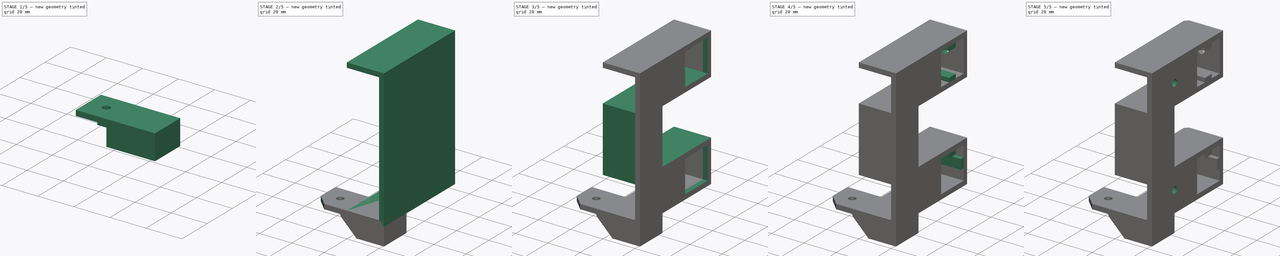
[diagram: build sequence overview — one tinted view per stage of 5, left to right]
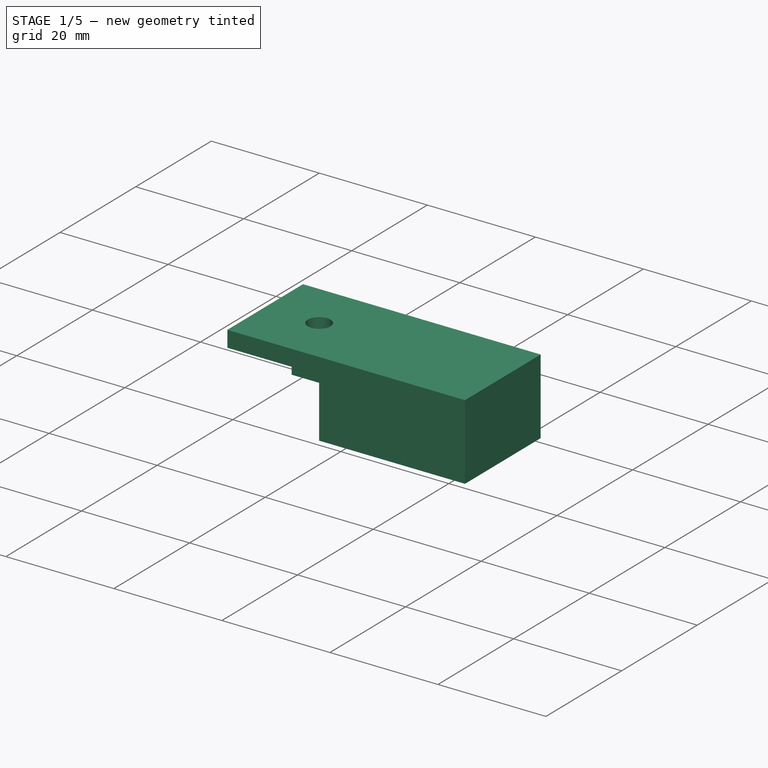
[diagram: stage 1 of 5 — iso view after this stage's code; geometry added in this stage tinted green]
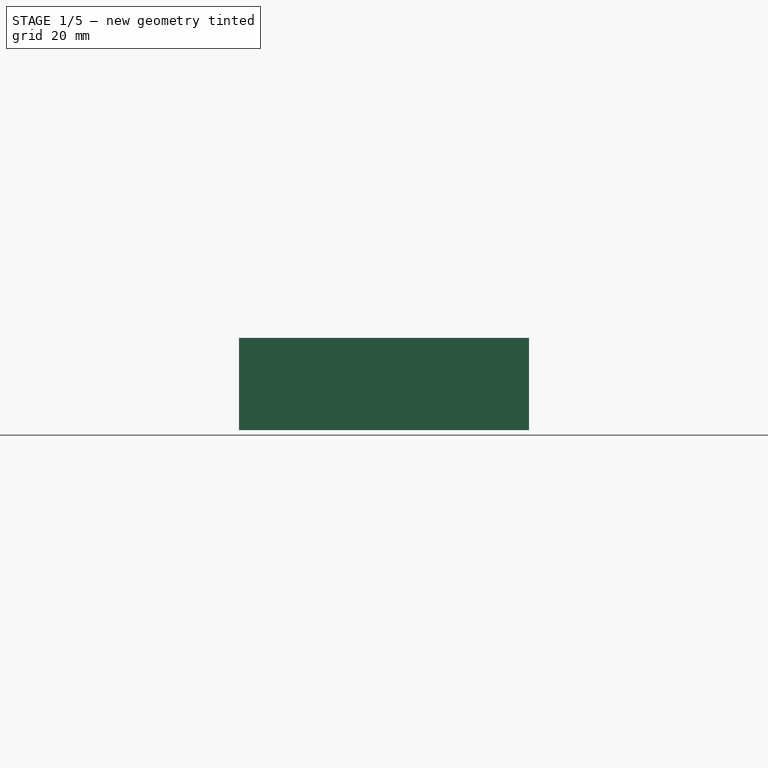
[diagram: stage 1 of 5 — front view after this stage's code; geometry added in this stage tinted green]
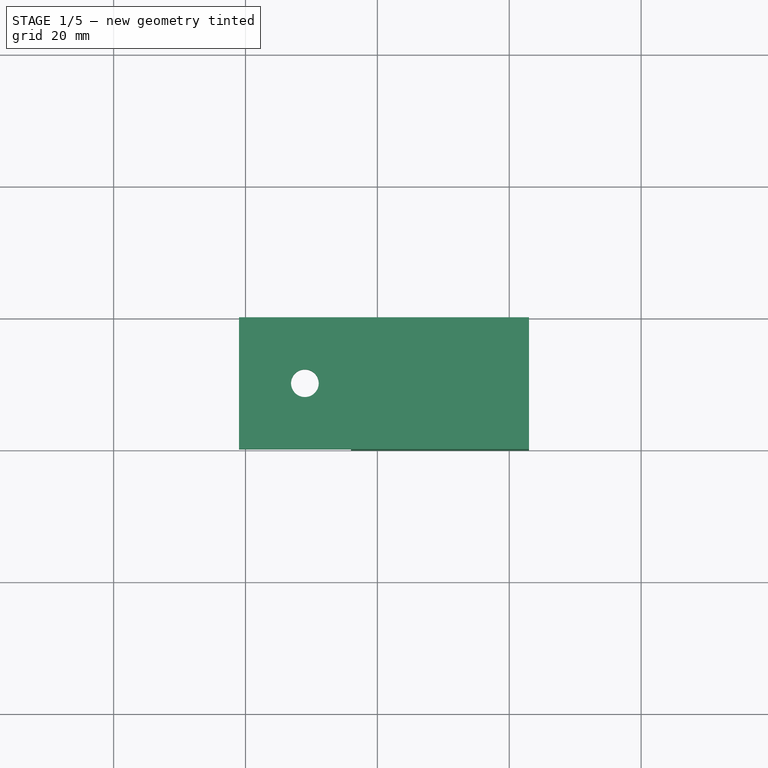
[diagram: stage 1 of 5 — top view after this stage's code; geometry added in this stage tinted green]
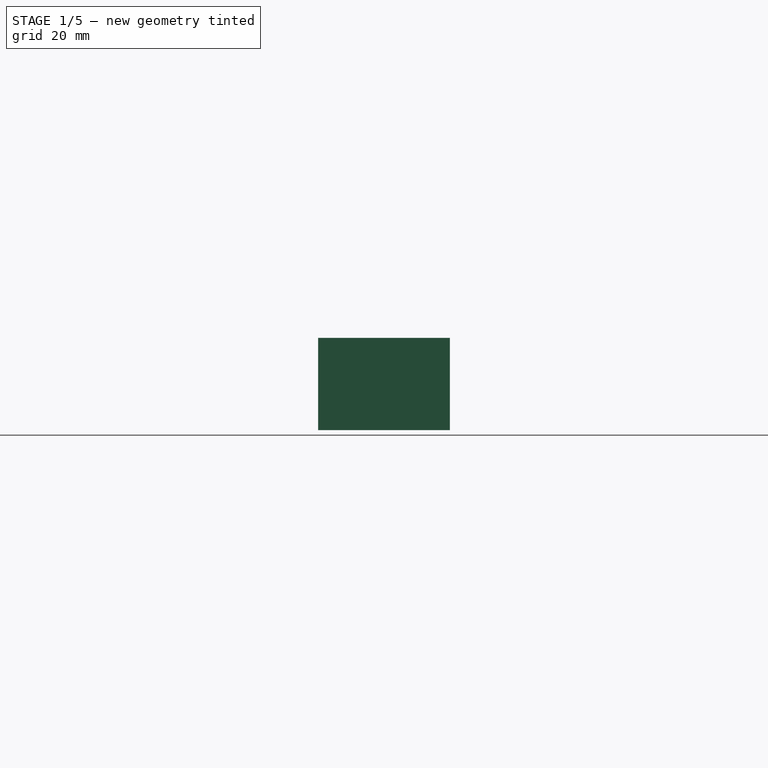
[diagram: stage 1 of 5 — right view after this stage's code; geometry added in this stage tinted green]
FCSTD DOCUMENT  (FreeCAD 0.14R3692 (Git))
Label: foot-front
License: CC-BY 3.0
LicenseURL: http://creativecommons.org/licenses/by/3.0/
objects: Sketcher::SketchObject×12, PartDesign::Pocket×9, Part::Feature×5, PartDesign::Pad×3, Part::Box×2, Part::Chamfer×2, Part::Thickness×1, App::DocumentObjectGroup×1, Part::MultiFuse×1
note: 47 computed .brp shape members not serialized (recipe doc carries the construction recipe); baked Part::Feature solids carry a one-line shape summary decoded from their .brp

FEATURE [Part::Box] Box001  label="foot-cube"
  Height = 14
  Length = 44
  Placement = pos=(-21,-60,-14) rot=(0,0,1;0rad)
  Width = 20
FEATURE [Sketcher::SketchObject] Sketch015  label="foot-cutout-sketch"
  Placement = pos=(-21,-60,-14) rot=(0.57735,-0.57735,-0.57735;2.0944rad)
  Support = -> Box001 [Face1]
  sketch-geometry (4):
    g0: LineSegment StartX=-3 StartY=0 StartZ=0 EndX=-17 EndY=0 EndZ=0
    g1: LineSegment StartX=-17 StartY=0 StartZ=0 EndX=-17 EndY=11 EndZ=0
    g2: LineSegment StartX=-17 StartY=11 StartZ=0 EndX=-3 EndY=11 EndZ=0
    g3: LineSegment StartX=-3 StartY=11 StartZ=0 EndX=-3 EndY=0 EndZ=0
  constraints (12):
    c: Coincident(g0,g1)
    c: Coincident(g1,g2)
    c: Coincident(g2,g3)
    c: Coincident(g3,g0)
    c: Horizontal(g0)
    c: Horizontal(g2)
    c: Vertical(g1)
    c: Vertical(g3)
    c: PointOnObject(g0,g-1)
    c: DistanceX(g-1,g0) = -3
    c: DistanceX(g0) = -14
    c: DistanceY(g3) = -11
FEATURE [PartDesign::Pocket] Pocket008  label="foot-cutout-pocket"
  Length = 29
  Placement = pos=(-21,-60,-14) rot=(0,0,1;0rad)
  Sketch = -> Sketch015
  Type = 0
FEATURE [Part::Feature] Part__Feature  label="extrusion-p20n6b-300-bottom-left"
  Placement = pos=(10,-320,10) rot=(-1,0,0;1.5708rad)
  shape: bbox 20 x 300 x 20 mm, 154 faces (baked)
FEATURE [Part::Feature] Part__Feature001  label="extrusion-p20n6b-300-top-left"
  Placement = pos=(10,-320,70) rot=(-1,0,0;1.5708rad)
  shape: bbox 20 x 300 x 20 mm, 154 faces (baked)
FEATURE [Part::Feature] Part__Feature002  label="extrusion-p20n6b-200-bottom-front"
  Placement = pos=(0,-10,10) rot=(0,1,0;1.5708rad)
  shape: bbox 200 x 20 x 20 mm, 154 faces (baked)
FEATURE [Part::Feature] Part__Feature003  label="extrusion-p20n6b-200-top-front"
  Placement = pos=(0,-10,70) rot=(0,1,0;1.5708rad)
  shape: bbox 200 x 20 x 20 mm, 154 faces (baked)
FEATURE [App::DocumentObjectGroup] Grupo  label="aux"
  Group = -> [Part__Feature,Part__Feature001,Part__Feature002,Part__Feature003]
FEATURE [Sketcher::SketchObject] Sketch017  label="foot-accesible-sketch"
  Placement = pos=(-21,-60,-14) rot=(1,0,0;1.5708rad)
  Support = -> Pocket008 [Face2]
  sketch-geometry (4):
    g0: LineSegment StartX=-1 StartY=11 StartZ=0 EndX=17 EndY=11 EndZ=0
    g1: LineSegment StartX=17 StartY=11 StartZ=0 EndX=17 EndY=-1 EndZ=0
    g2: LineSegment StartX=17 StartY=-1 StartZ=0 EndX=-1 EndY=-1 EndZ=0
    g3: LineSegment StartX=-1 StartY=-1 StartZ=0 EndX=-1 EndY=11 EndZ=0
  constraints (12):
    c: Coincident(g0,g1)
    c: Coincident(g1,g2)
    c: Coincident(g2,g3)
    c: Coincident(g3,g0)
    c: Horizontal(g0)
    c: Horizontal(g2)
    c: Vertical(g1)
    c: Vertical(g3)
    c: DistanceX(g0) = 18
    c: DistanceY(g1) = -12
    c: DistanceX(g-1,g2) = -1
    c: DistanceY(g-1,g2) = -1
FEATURE [PartDesign::Pocket] Pocket010  label="foot-accesible-pocket"
  Length = 3
  Placement = pos=(-21,-60,-14) rot=(0,0,1;0rad)
  Sketch = -> Sketch017
  Type = 0
FEATURE [Sketcher::SketchObject] Sketch016  label="foot-screw-hole-sketch"
  Placement = pos=(-21,-60,0) rot=(0,0,1;0rad)
  Support = -> Pocket010 [Face3]
  sketch-geometry (1):
    g0: Circle CenterX=10 CenterY=10 CenterZ=0 NormalX=0 NormalY=0 NormalZ=1 Radius=2.1
  constraints (3):
    c: DistanceY(g-1,g0) = 10
    c: DistanceX(g-1,g0) = 10
    c: Radius(g0) = 2.1
FEATURE [PartDesign::Pocket] Pocket009  label="foot-screw-hole-pocket"
  Length = 3
  Placement = pos=(-21,-60,-14) rot=(0,0,1;0rad)
  Sketch = -> Sketch016
  Type = 0
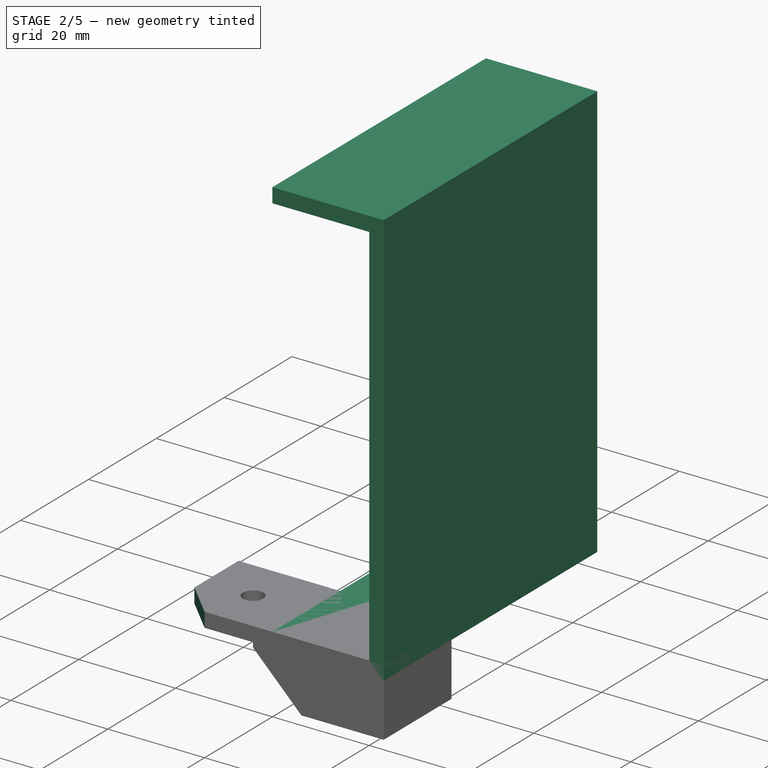
[diagram: stage 2 of 5 — iso view after this stage's code; geometry added in this stage tinted green]
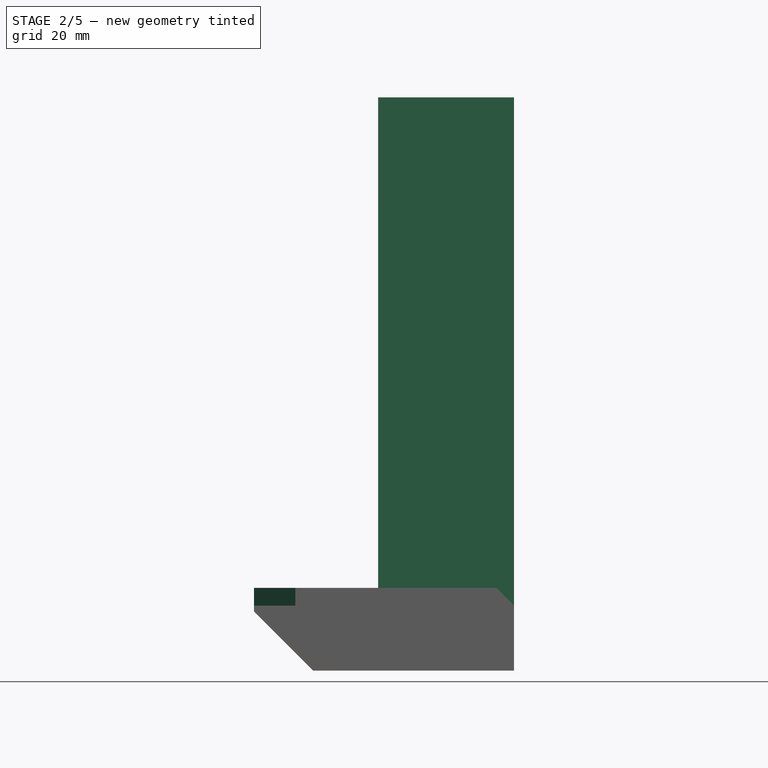
[diagram: stage 2 of 5 — front view after this stage's code; geometry added in this stage tinted green]
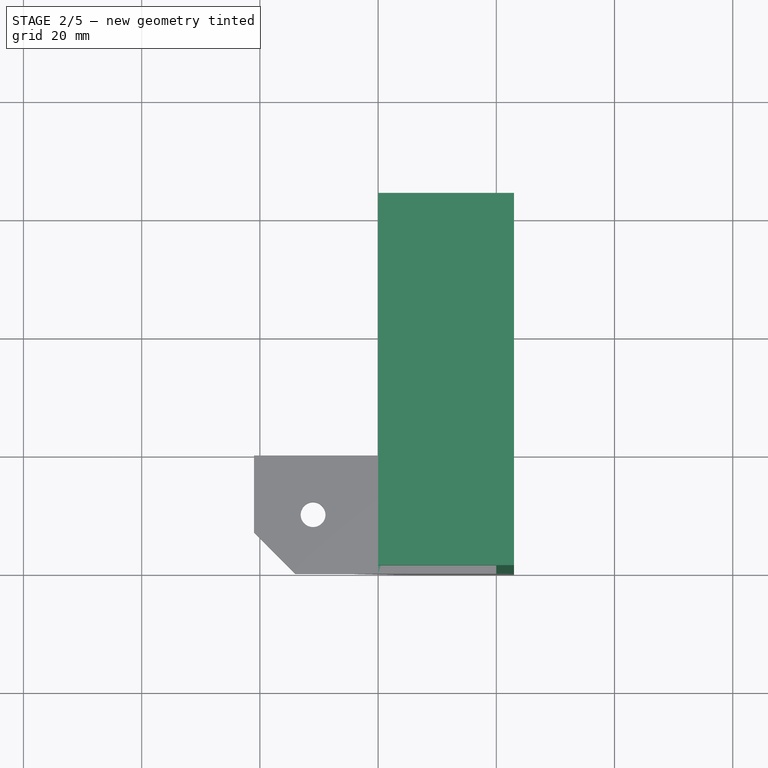
[diagram: stage 2 of 5 — top view after this stage's code; geometry added in this stage tinted green]
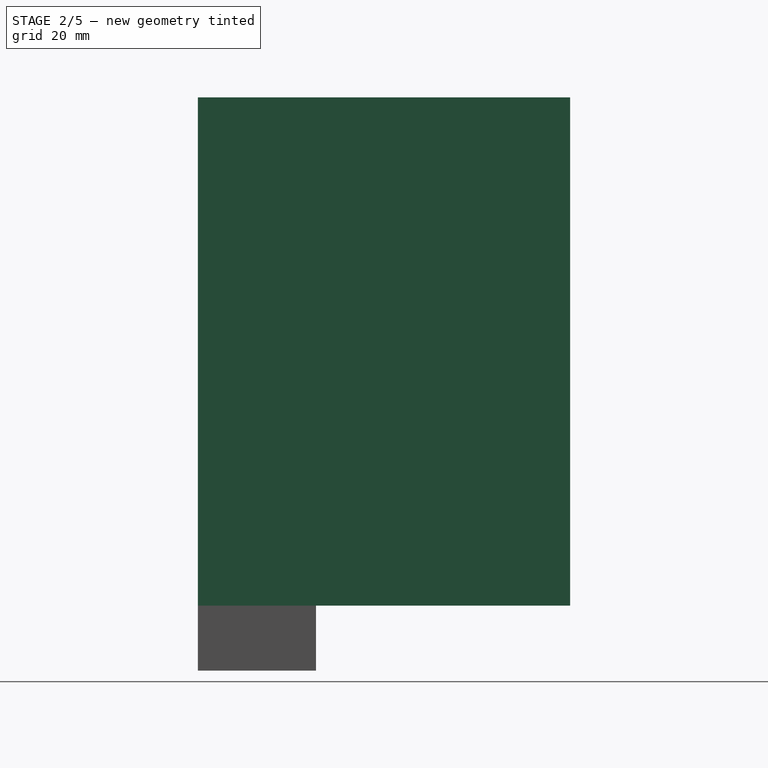
[diagram: stage 2 of 5 — right view after this stage's code; geometry added in this stage tinted green]
FEATURE [Part::Box] Box  label="body-cube"
  Height = 80
  Length = 20
  Placement = pos=(0,-60,0) rot=(0,0,1;0rad)
  Width = 60
FEATURE [Part::Thickness] Thickness  label="body-thickness"
  Faces = -> Box [Face1,Face3]
  Intersection = false
  Join = 2
  Mode = 0
  SelfIntersection = false
  Value = 3
FEATURE [Part::Chamfer] Chamfer003  label="foot-chamfer"
  Base = -> Pocket009
  Edges = 3 edges: [Edge7 r=7,Edge18 r=10,Edge19 r=10]
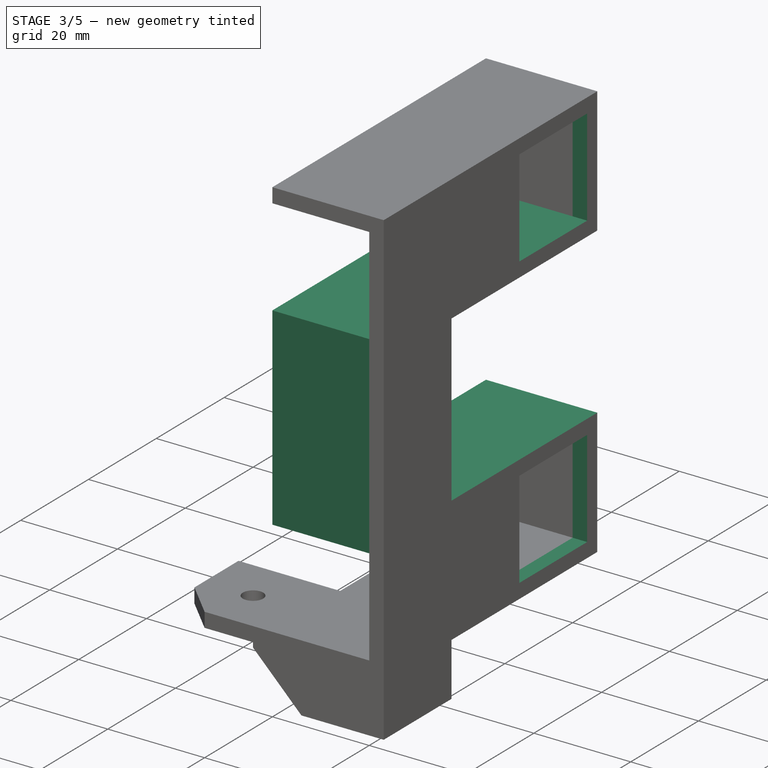
[diagram: stage 3 of 5 — iso view after this stage's code; geometry added in this stage tinted green]
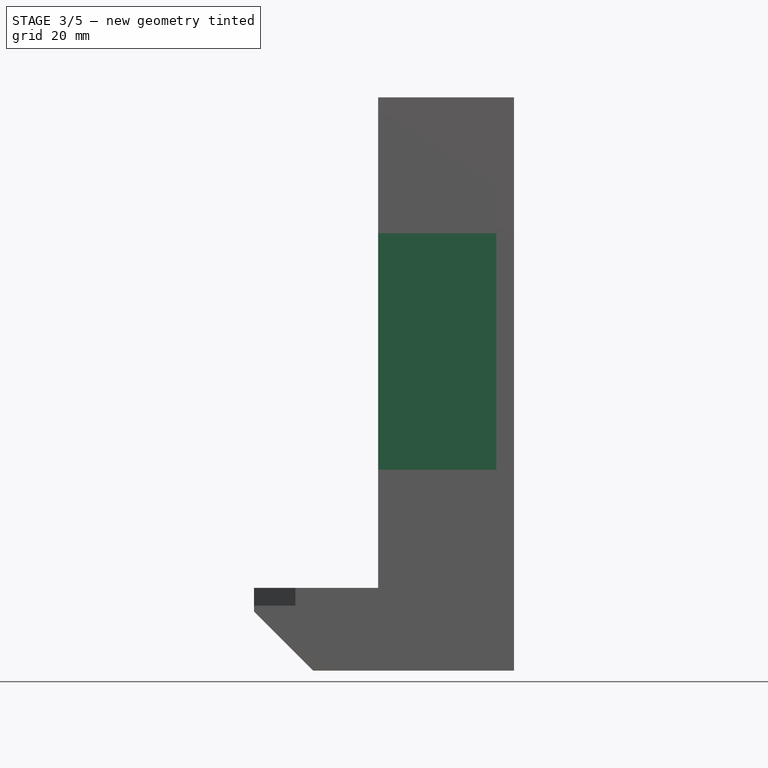
[diagram: stage 3 of 5 — front view after this stage's code; geometry added in this stage tinted green]
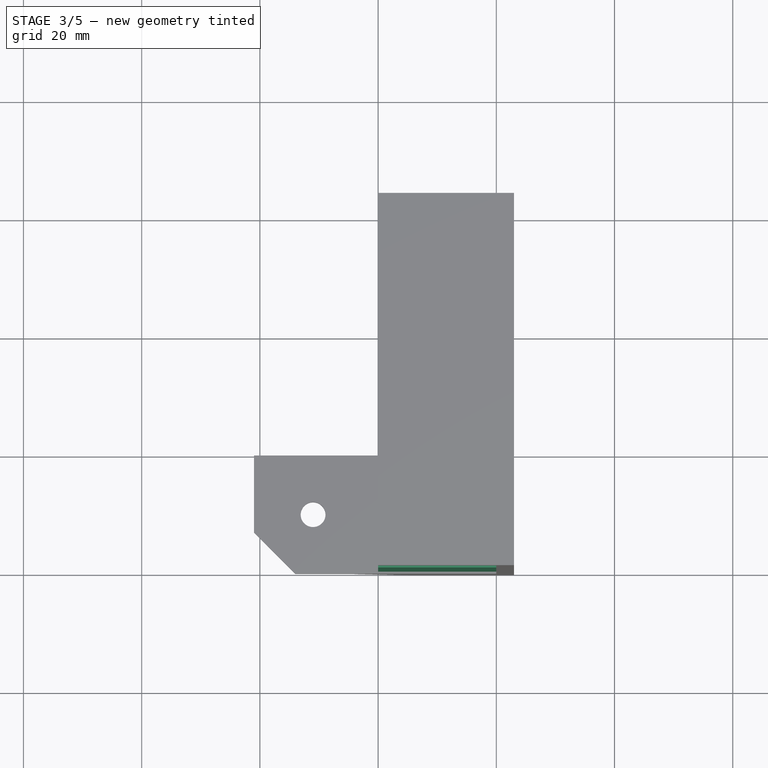
[diagram: stage 3 of 5 — top view after this stage's code; geometry added in this stage tinted green]
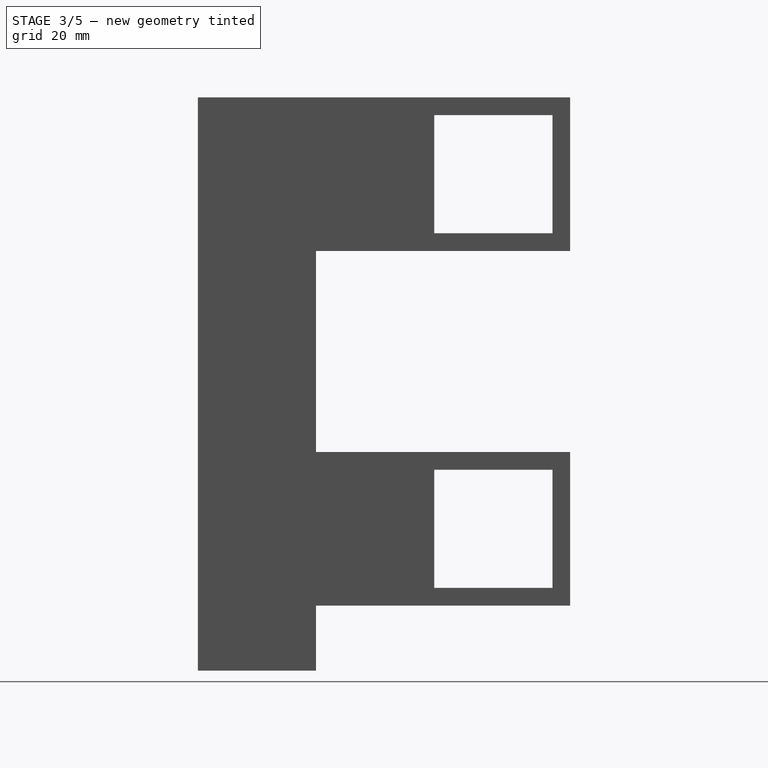
[diagram: stage 3 of 5 — right view after this stage's code; geometry added in this stage tinted green]
FEATURE [Sketcher::SketchObject] Sketch  label="body-sketch"
  Placement = pos=(20,0,0) rot=(0.57735,-0.57735,-0.57735;2.0944rad)
  Support = -> Thickness [Face1]
  sketch-geometry (4):
    g0: LineSegment StartX=0 StartY=60 StartZ=0 EndX=60 EndY=60 EndZ=0
    g1: LineSegment StartX=60 StartY=60 StartZ=0 EndX=60 EndY=20 EndZ=0
    g2: LineSegment StartX=0 StartY=20 StartZ=0 EndX=0 EndY=60 EndZ=0
    g3: LineSegment StartX=60 StartY=20 StartZ=0 EndX=0 EndY=20 EndZ=0
  constraints (12):
    c: Coincident(g3,g2)
    c: Coincident(g2,g0)
    c: Horizontal(g0)
    c: Vertical(g1)
    c: Vertical(g2)
    c: DistanceY(g-1,g3) = 20
    c: Horizontal(g3)
    c: Coincident(g1,g3)
    c: Coincident(g0,g1)
    c: PointOnObject(g2,g-2)
    c: DistanceY(g2) = 40
    c: DistanceX(g3) = -60
FEATURE [PartDesign::Pad] Pad  label="body-pad"
  Length = 20
  Length2 = 100
  Sketch = -> Sketch
  Type = 0
  UpToFace = -> Thickness [Face5]
FEATURE [Sketcher::SketchObject] Sketch001  label="body-cutout-sketch"
  Placement = pos=(0,0,0) rot=(0.57735,-0.57735,-0.57735;2.0944rad)
  Support = -> Pad [Face11]
  sketch-geometry (4):
    g0: LineSegment StartX=-3 StartY=57 StartZ=0 EndX=40 EndY=57 EndZ=0
    g1: LineSegment StartX=40 StartY=57 StartZ=0 EndX=40 EndY=23 EndZ=0
    g2: LineSegment StartX=40 StartY=23 StartZ=0 EndX=-3 EndY=23 EndZ=0
    g3: LineSegment StartX=-3 StartY=23 StartZ=0 EndX=-3 EndY=57 EndZ=0
  constraints (12):
    c: Coincident(g0,g1)
    c: Coincident(g1,g2)
    c: Coincident(g2,g3)
    c: Coincident(g3,g0)
    c: Horizontal(g0)
    c: Horizontal(g2)
    c: Vertical(g1)
    c: Vertical(g3)
    c: DistanceY(g-1,g1) = 23
    c: DistanceY(g1) = -34
    c: DistanceX(g2) = -43
    c: DistanceX(g-1,g2) = -3
FEATURE [PartDesign::Pocket] Pocket  label="body-cutout-pocket"
  Length = 5
  Sketch = -> Sketch001
  Type = 1
FEATURE [Sketcher::SketchObject] Sketch002  label="body-recess-sketch"
  Placement = pos=(0,0,0) rot=(0.57735,-0.57735,-0.57735;2.0944rad)
  Support = -> Pocket [Face2]
  sketch-geometry (4):
    g0: LineSegment StartX=43 StartY=57 StartZ=0 EndX=57 EndY=57 EndZ=0
    g1: LineSegment StartX=57 StartY=57 StartZ=0 EndX=57 EndY=23 EndZ=0
    g2: LineSegment StartX=57 StartY=23 StartZ=0 EndX=43 EndY=23 EndZ=0
    g3: LineSegment StartX=43 StartY=23 StartZ=0 EndX=43 EndY=57 EndZ=0
  constraints (12):
    c: Coincident(g0,g1)
    c: Coincident(g1,g2)
    c: Coincident(g2,g3)
    c: Coincident(g3,g0)
    c: Horizontal(g0)
    c: Horizontal(g2)
    c: Vertical(g1)
    c: Vertical(g3)
    c: DistanceY(g-1,g1) = 23
    c: DistanceX(g2) = -14
    c: DistanceY(g1) = -34
    c: DistanceX(g-1,g2) = 43
FEATURE [PartDesign::Pocket] Pocket001  label="body-recess-pocket"
  Length = 0
  Sketch = -> Sketch002
  Type = 3
  UpToFace = -> Pocket [Face4]
FEATURE [Sketcher::SketchObject] Sketch003  label="slot-front-hole-sketch"
  Placement = pos=(23,0,0) rot=(0.57735,0.57735,0.57735;2.0944rad)
  Support = -> Pocket001 [Face11]
  sketch-geometry (8):
    g0: LineSegment StartX=-20 StartY=80 StartZ=0 EndX=0 EndY=80 EndZ=0
    g1: LineSegment StartX=0 StartY=80 StartZ=0 EndX=0 EndY=60 EndZ=0
    g2: LineSegment StartX=0 StartY=60 StartZ=0 EndX=-20 EndY=60 EndZ=0
    g3: LineSegment StartX=-20 StartY=20 StartZ=0 EndX=0 EndY=20 EndZ=0
    g4: LineSegment StartX=0 StartY=20 StartZ=0 EndX=0 EndY=0 EndZ=0
    g5: LineSegment StartX=0 StartY=0 StartZ=0 EndX=-20 EndY=0 EndZ=0
    g6: LineSegment StartX=-20 StartY=80 StartZ=0 EndX=-20 EndY=60 EndZ=0
    g7: LineSegment StartX=-20 StartY=20 StartZ=0 EndX=-20 EndY=0 EndZ=0
  constraints (23):
    c: Coincident(g0,g1)
    c: Coincident(g1,g2)
    c: Horizontal(g0)
    c: Horizontal(g2)
    c: Vertical(g1)
    c: Coincident(g3,g4)
    c: Coincident(g4,g5)
    c: Horizontal(g3)
    c: Horizontal(g5)
    c: Vertical(g4)
    c: Coincident(g0,g6)
    c: Coincident(g2,g6)
    c: Vertical(g6)
    c: Coincident(g5,g7)
    c: Coincident(g3,g7)
    c: DistanceY(g4) = -20
    c: DistanceX(g5) = -20
    c: DistanceX(g2) = -20
    c: DistanceY(g1) = -20
    c: DistanceY(g-1,g1) = 60
    c: Vertical(g7)
    c: Coincident(g4,g-1)
    c: PointOnObject(g1,g-2)
FEATURE [PartDesign::Pocket] Pocket002  label="slot-front-hole-pocket"
  Length = 3
  Sketch = -> Sketch003
  Type = 0
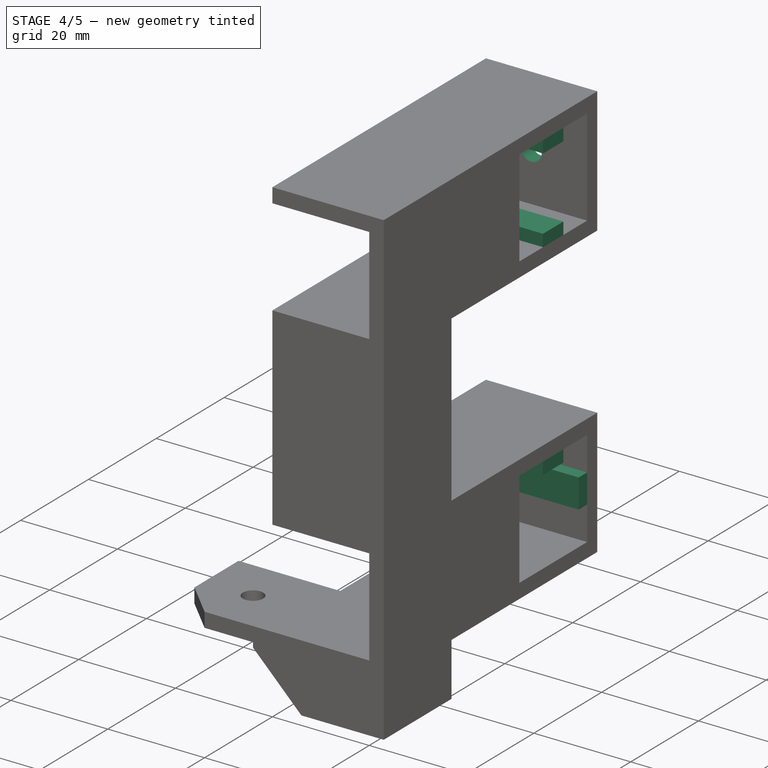
[diagram: stage 4 of 5 — iso view after this stage's code; geometry added in this stage tinted green]
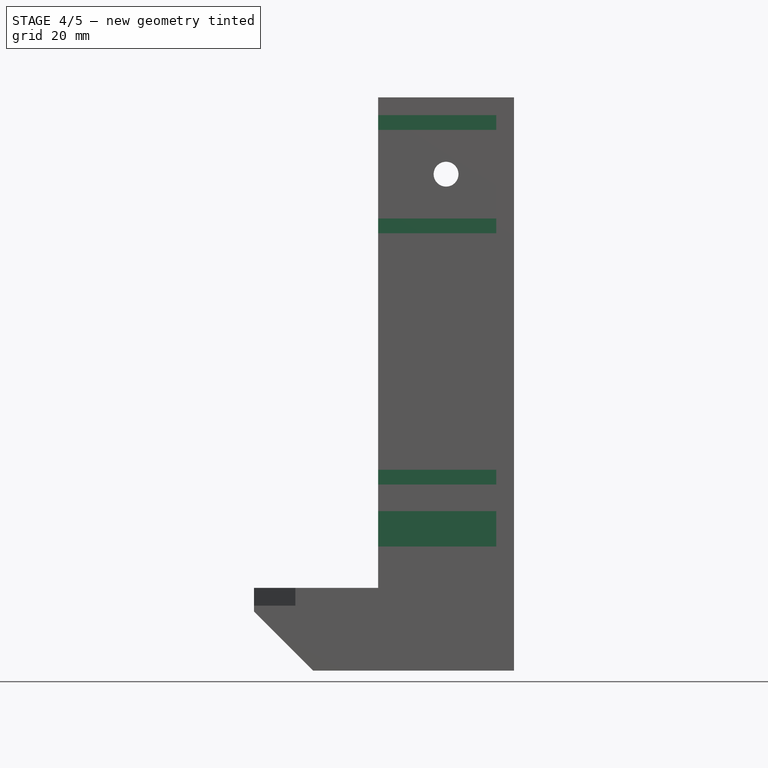
[diagram: stage 4 of 5 — front view after this stage's code; geometry added in this stage tinted green]
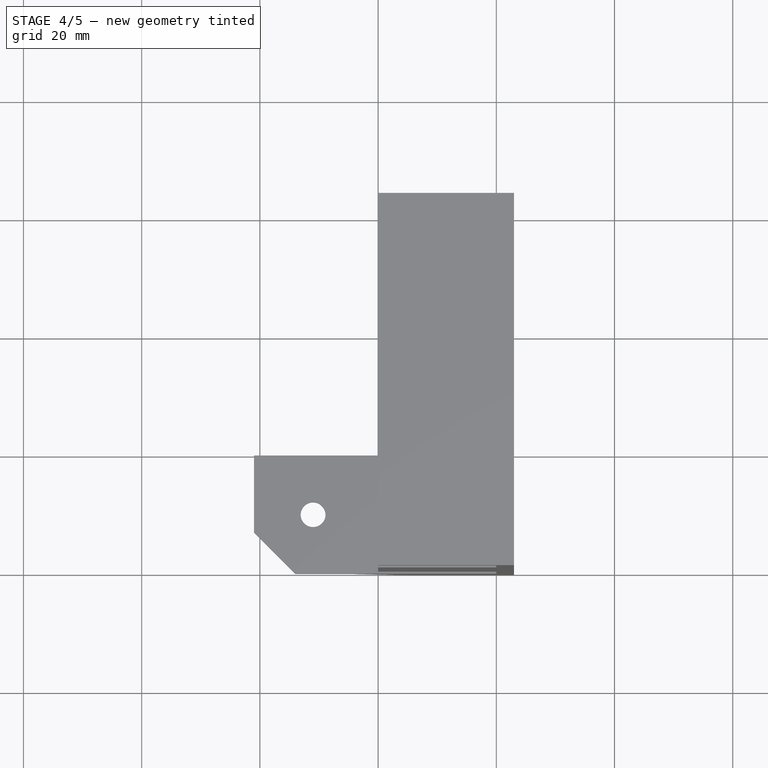
[diagram: stage 4 of 5 — top view after this stage's code; geometry added in this stage tinted green]
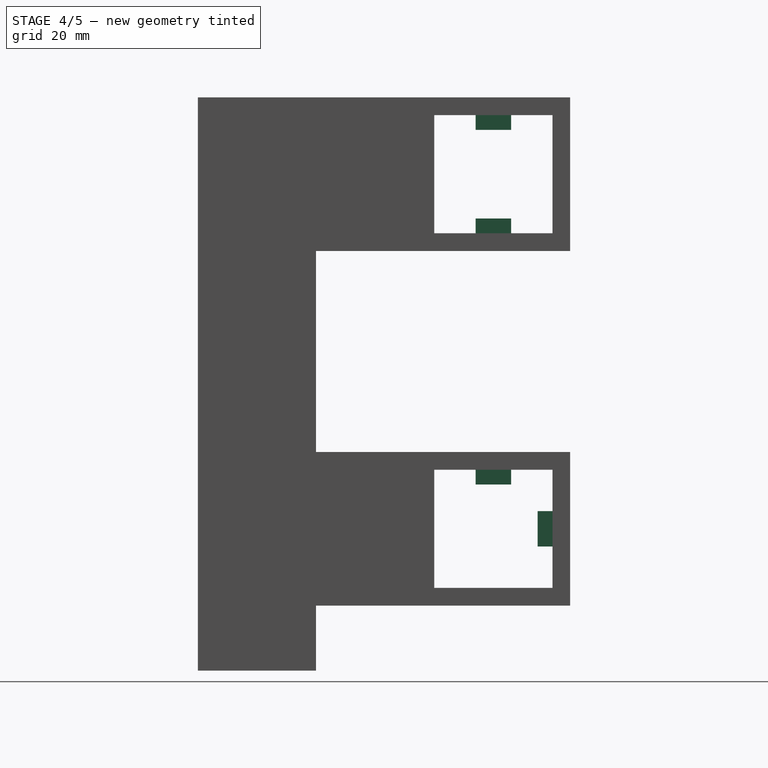
[diagram: stage 4 of 5 — right view after this stage's code; geometry added in this stage tinted green]
FEATURE [Sketcher::SketchObject] Sketch012  label="slot-front-guide-sketch"
  Placement = pos=(23,0,0) rot=(0.57735,0.57735,0.57735;2.0944rad)
  Support = -> Pocket002 [Face9]
  sketch-geometry (16):
    g0: LineSegment StartX=-13 StartY=20 StartZ=0 EndX=-7 EndY=20 EndZ=0
    g1: LineSegment StartX=-7 StartY=20 StartZ=0 EndX=-7 EndY=17.5 EndZ=0
    g2: LineSegment StartX=-7 StartY=17.5 StartZ=0 EndX=-13 EndY=17.5 EndZ=0
    g3: LineSegment StartX=-13 StartY=17.5 StartZ=0 EndX=-13 EndY=20 EndZ=0
    g4: LineSegment StartX=-2.5 StartY=13 StartZ=0 EndX=0 EndY=13 EndZ=0
    g5: LineSegment StartX=0 StartY=13 StartZ=0 EndX=0 EndY=7 EndZ=0
    g6: LineSegment StartX=0 StartY=7 StartZ=0 EndX=-2.5 EndY=7 EndZ=0
    g7: LineSegment StartX=-2.5 StartY=7 StartZ=0 EndX=-2.5 EndY=13 EndZ=0
    g8: LineSegment StartX=-13 StartY=80 StartZ=0 EndX=-7 EndY=80 EndZ=0
    g9: LineSegment StartX=-7 StartY=80 StartZ=0 EndX=-7 EndY=77.5 EndZ=0
    g10: LineSegment StartX=-7 StartY=77.5 StartZ=0 EndX=-13 EndY=77.5 EndZ=0
    g11: LineSegment StartX=-13 StartY=77.5 StartZ=0 EndX=-13 EndY=80 EndZ=0
    g12: LineSegment StartX=-13 StartY=62.5 StartZ=0 EndX=-7 EndY=62.5 EndZ=0
    g13: LineSegment StartX=-7 StartY=62.5 StartZ=0 EndX=-7 EndY=60 EndZ=0
    g14: LineSegment StartX=-7 StartY=60 StartZ=0 EndX=-13 EndY=60 EndZ=0
    g15: LineSegment StartX=-13 StartY=60 StartZ=0 EndX=-13 EndY=62.5 EndZ=0
  constraints (48):
    c: Coincident(g8,g11)
    c: Coincident(g8,g9)
    c: Coincident(g9,g10)
    c: Coincident(g10,g11)
    c: Vertical(g11)
    c: Vertical(g9)
    c: Horizontal(g10)
    c: Horizontal(g8)
    c: Coincident(g12,g15)
    c: Coincident(g12,g13)
    c: Coincident(g14,g15)
    c: Coincident(g13,g14)
    c: Coincident(g0,g3)
    c: Coincident(g0,g1)
    c: Coincident(g2,g3)
    c: Coincident(g1,g2)
    c: Coincident(g4,g7)
    c: Coincident(g6,g7)
    c: Coincident(g4,g5)
    c: Coincident(g5,g6)
    c: Vertical(g7)
    c: Vertical(g5)
    c: Vertical(g3)
    c: Vertical(g1)
    c: Vertical(g15)
    c: Vertical(g13)
    c: Horizontal(g14)
    c: Horizontal(g12)
    c: Horizontal(g0)
    c: Horizontal(g2)
    c: Horizontal(g4)
    c: Horizontal(g6)
    c: DistanceX(g10) = -6
    c: DistanceX(g12) = 6
    c: DistanceX(g2) = -6
    c: DistanceY(g7) = 6
    c: DistanceY(g3) = 2.5
    c: DistanceX(g6) = -2.5
    c: DistanceY(g15) = 2.5
    c: DistanceY(g11) = 2.5
    c: DistanceY(g-1,g5) = 7
    c: DistanceY(g-1,g0) = 20
    c: PointOnObject(g5,g-2)
    c: DistanceX(g-1,g0) = -7
    c: DistanceY(g-1,g13) = 60
    c: DistanceX(g-1,g13) = -7
    c: DistanceY(g8,g13) = -20
    c: DistanceX(g-1,g8) = -7
FEATURE [PartDesign::Pad] Pad003  label="slot-front-guide-pad"
  Length = 23
  Length2 = 100
  Reversed = true
  Sketch = -> Sketch012
  Type = 0
FEATURE [Sketcher::SketchObject] Sketch010  label="slot-front-bottom-screw-hole-sketch"
  Placement = pos=(0,0,-3) rot=(1,0,0;3.14159rad)
  Support = -> Pad003 [Face3]
  sketch-geometry (1):
    g0: Circle CenterX=11.5 CenterY=10 CenterZ=0 NormalX=0 NormalY=0 NormalZ=1 Radius=2.1
  constraints (3):
    c: DistanceX(g-1,g0) = 11.5
    c: DistanceY(g-1,g0) = 10
    c: Radius(g0) = 2.1
FEATURE [PartDesign::Pocket] Pocket004  label="slot-front-bottom-screw-hole-pocket"
  Length = 3
  Sketch = -> Sketch010
  Type = 0
FEATURE [Sketcher::SketchObject] Sketch009  label="slot-front-top-screw-hole-sketch"
  Placement = pos=(0,3,0) rot=(0,0.707107,0.707107;3.14159rad)
  Support = -> Pocket004 [Face15]
  sketch-geometry (1):
    g0: Circle CenterX=-11.5 CenterY=70 CenterZ=0 NormalX=0 NormalY=0 NormalZ=1 Radius=2.1
  constraints (3):
    c: DistanceY(g-1,g0) = 70
    c: DistanceX(g-1,g0) = -11.5
    c: Radius(g0) = 2.1
FEATURE [PartDesign::Pocket] Pocket005  label="slot-front-top-screw-hole-pocket"
  Length = 3
  Sketch = -> Sketch009
  Type = 0
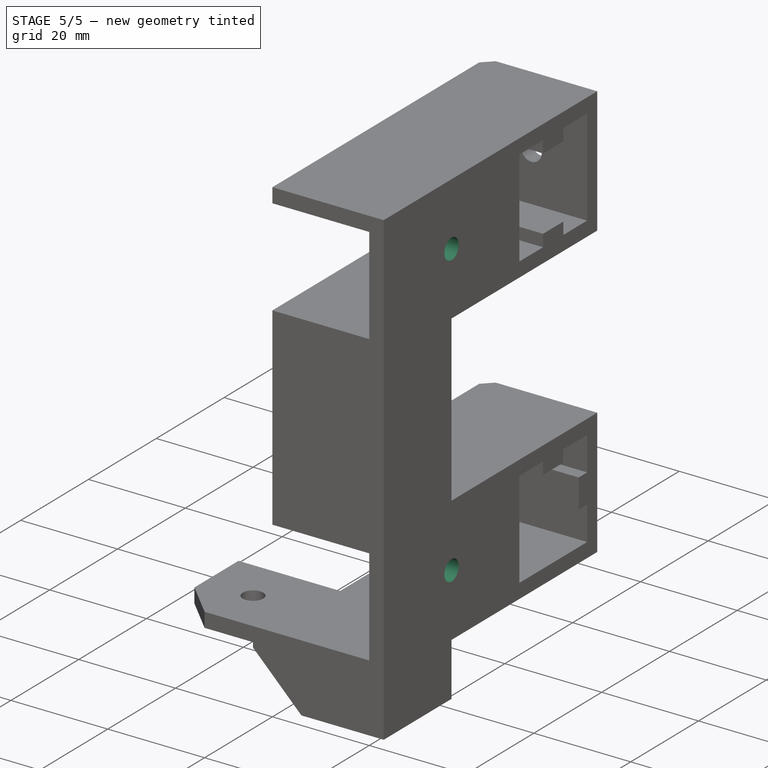
[diagram: stage 5 of 5 — iso view after this stage's code; geometry added in this stage tinted green]
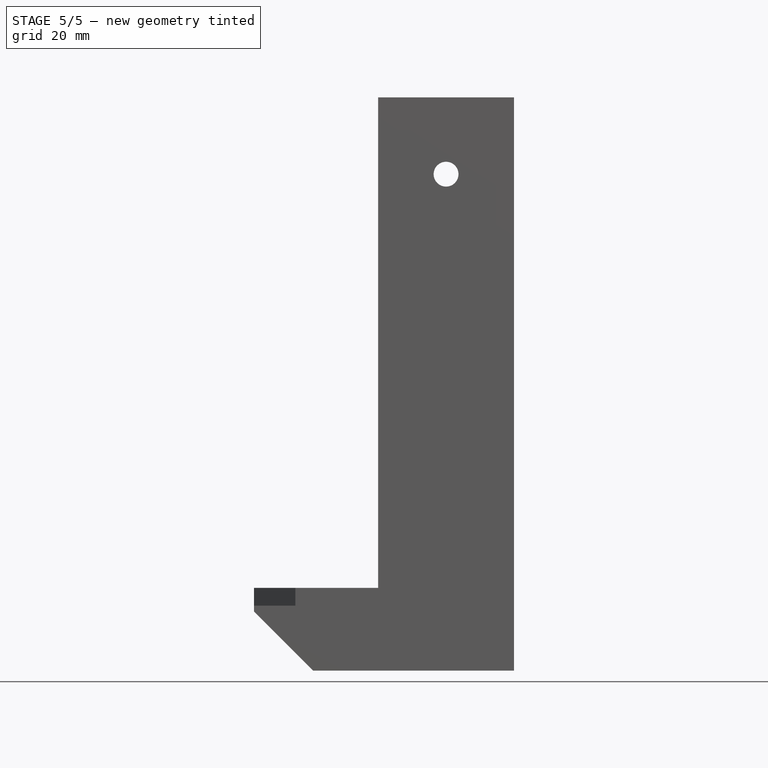
[diagram: stage 5 of 5 — front view after this stage's code; geometry added in this stage tinted green]
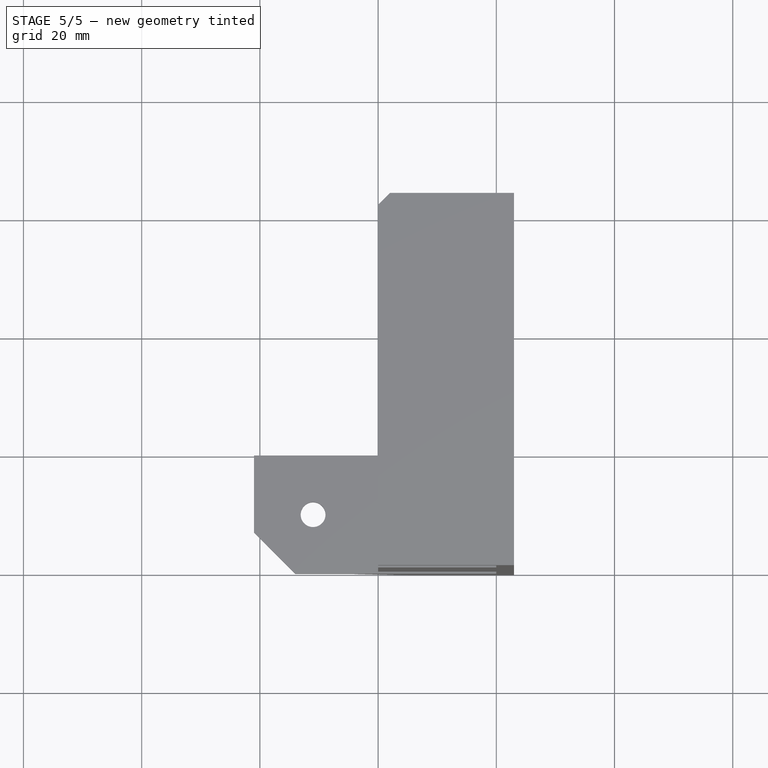
[diagram: stage 5 of 5 — top view after this stage's code; geometry added in this stage tinted green]
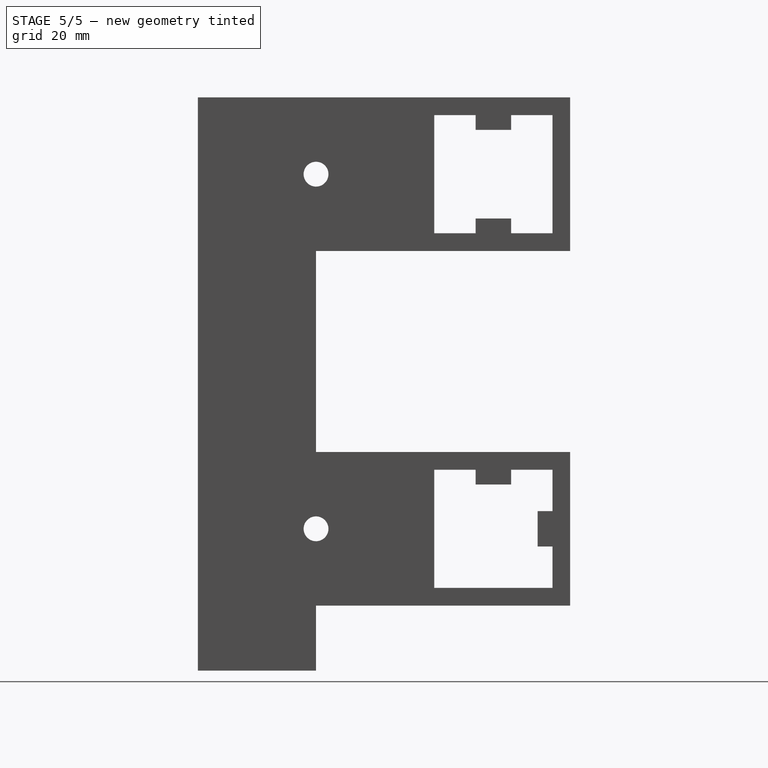
[diagram: stage 5 of 5 — right view after this stage's code; geometry added in this stage tinted green]
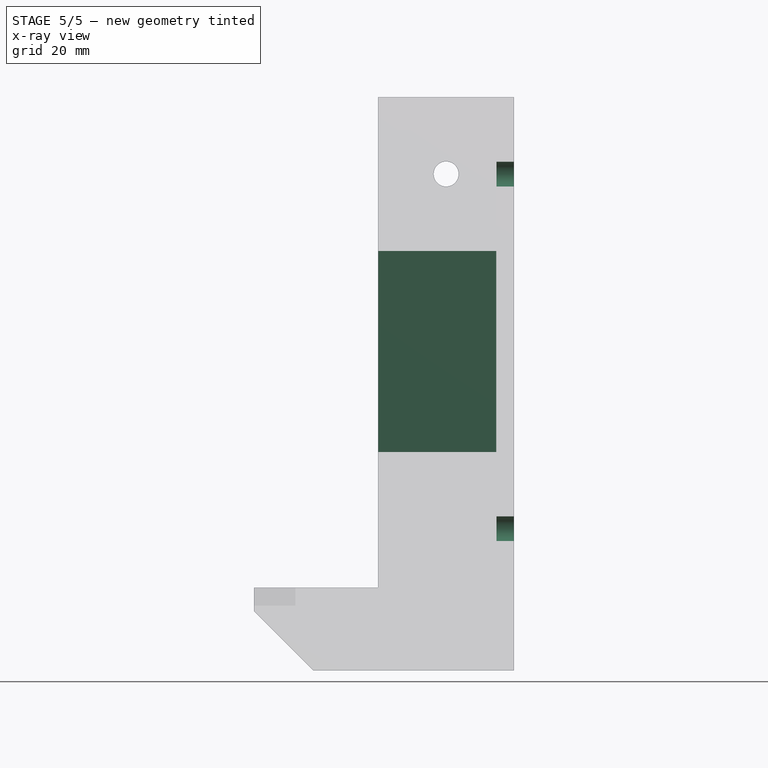
[diagram: stage 5 of 5 — x-ray composite at the front view; earlier geometry ghosted, this stage's added geometry solid]
FEATURE [Sketcher::SketchObject] Sketch013  label="slot-left-screw-holes-sketch"
  Placement = pos=(23,0,0) rot=(0.57735,0.57735,0.57735;2.0944rad)
  Support = -> Pocket005 [Face4]
  sketch-geometry (2):
    g0: Circle CenterX=-40 CenterY=70 CenterZ=0 NormalX=0 NormalY=0 NormalZ=1 Radius=2.1
    g1: Circle CenterX=-40 CenterY=10 CenterZ=0 NormalX=0 NormalY=0 NormalZ=1 Radius=2.1
  constraints (6):
    c: DistanceY(g-1,g1) = 10
    c: DistanceX(g-1,g1) = -40
    c: DistanceY(g-1,g0) = 70
    c: DistanceX(g-1,g0) = -40
    c: Radius(g1) = 2.1
    c: Equal(g1,g0)
FEATURE [PartDesign::Pocket] Pocket007  label="slot-left-screw-holes-pocket"
  Length = 3
  Sketch = -> Sketch013
  Type = 0
FEATURE [Sketcher::SketchObject] Sketch014  label="body-recess-reinforced-sketch"
  Placement = pos=(0,0,57) rot=(1,0,0;3.14159rad)
  Support = -> Pocket007 [Face48]
  sketch-geometry (6):
    g0: LineSegment StartX=0 StartY=57 StartZ=0 EndX=20 EndY=57 EndZ=0
    g1: LineSegment StartX=20 StartY=57 StartZ=0 EndX=20 EndY=56 EndZ=0
    g2: LineSegment StartX=20 StartY=56 StartZ=0 EndX=0 EndY=57 EndZ=0
    g3: LineSegment StartX=0 StartY=43 StartZ=0 EndX=20 EndY=43 EndZ=0
    g4: LineSegment StartX=20 StartY=43 StartZ=0 EndX=20 EndY=44 EndZ=0
    g5: LineSegment StartX=20 StartY=44 StartZ=0 EndX=0 EndY=43 EndZ=0
  constraints (18):
    c: Coincident(g0,g1)
    c: Coincident(g1,g2)
    c: Coincident(g2,g0)
    c: Coincident(g3,g4)
    c: Coincident(g4,g5)
    c: Coincident(g5,g3)
    c: Vertical(g1)
    c: Vertical(g4)
    c: DistanceY(g4) = 1
    c: DistanceY(g1) = -1
    c: PointOnObject(g0,g-2)
    c: PointOnObject(g3,g-2)
    c: Horizontal(g0)
    c: Horizontal(g3)
    c: DistanceX(g3) = 20
    c: DistanceX(g0) = 20
    c: DistanceY(g-1,g3) = 43
    c: DistanceY(g0,g3) = -14
FEATURE [PartDesign::Pad] Pad004  label="body-recess-reinforced-pad"
  Length = 23
  Length2 = 100
  Sketch = -> Sketch014
  Type = 2
FEATURE [Part::Chamfer] Chamfer001  label="slot-front-chamfer"
  Base = -> Pad004
  Edges = 2 edges r=2: [Edge1,Edge84]
FEATURE [Part::MultiFuse] Fusion  label="body-foot-fusion"
  Shapes = -> [Chamfer003,Chamfer001]
FEATURE [Part::Feature] Fusion002  label="foot-front-left"
  shape: bbox 44 x 63 x 97 mm, 59 faces (baked)
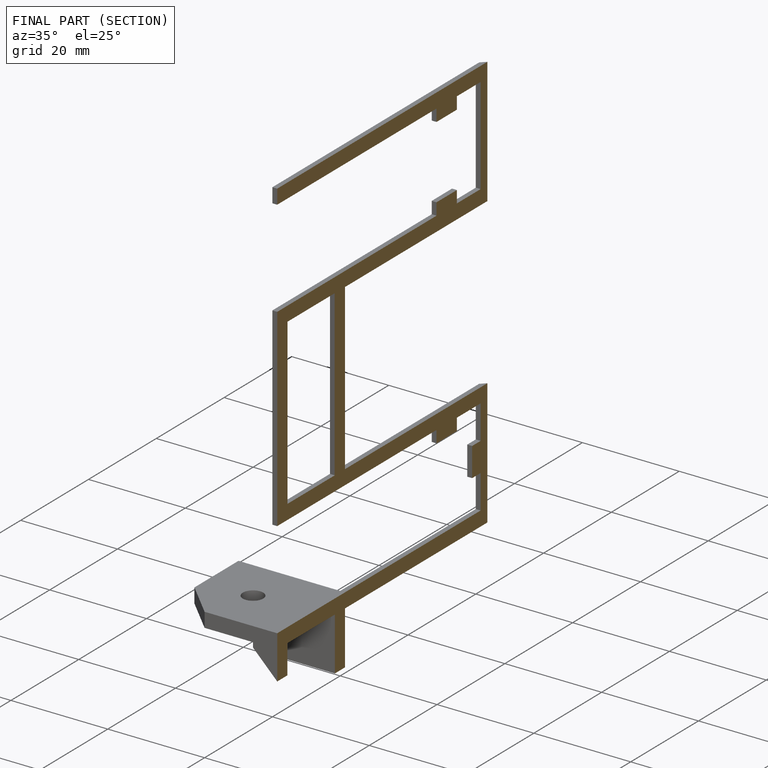
[diagram: finished part — half-section view (interior)]
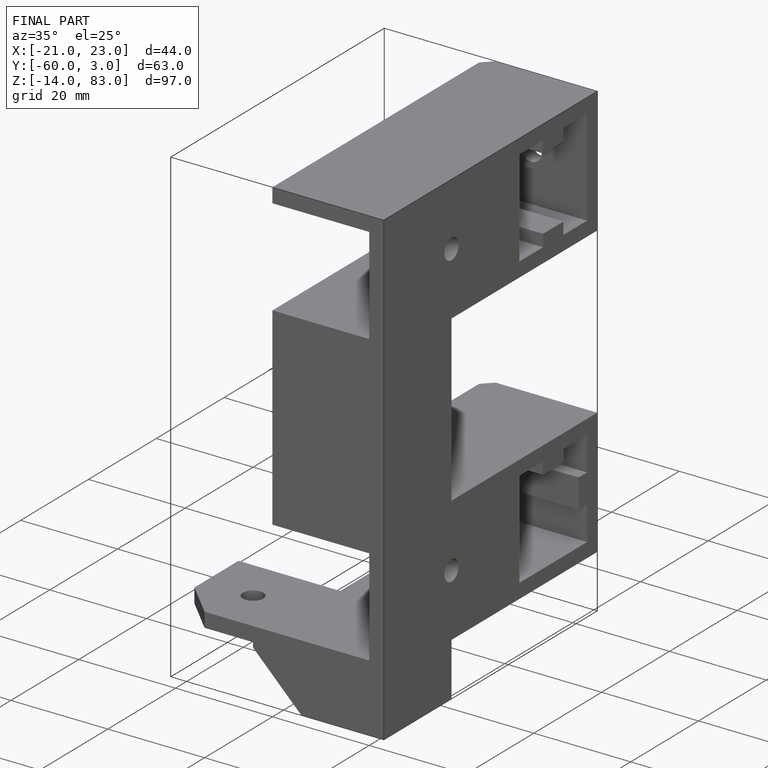
[diagram: finished part — iso view with bounding-box wireframe]
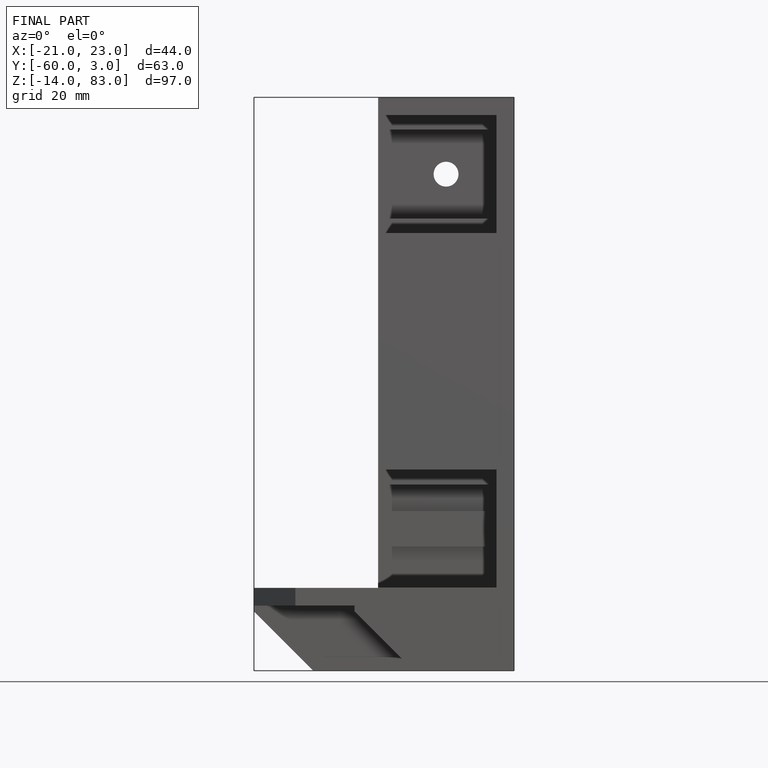
[diagram: finished part — front view with bounding-box wireframe]
